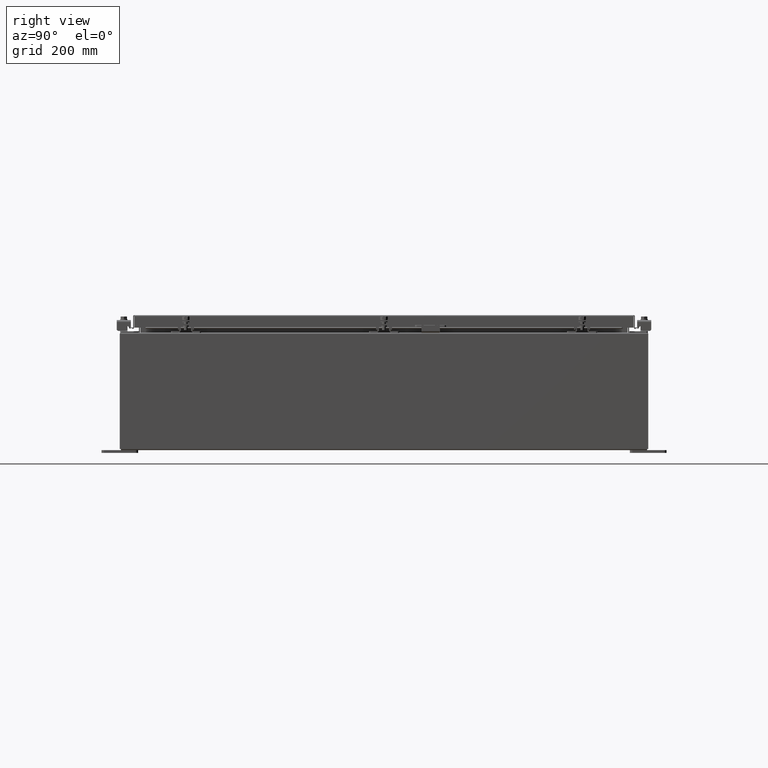
[diagram: clean part render]
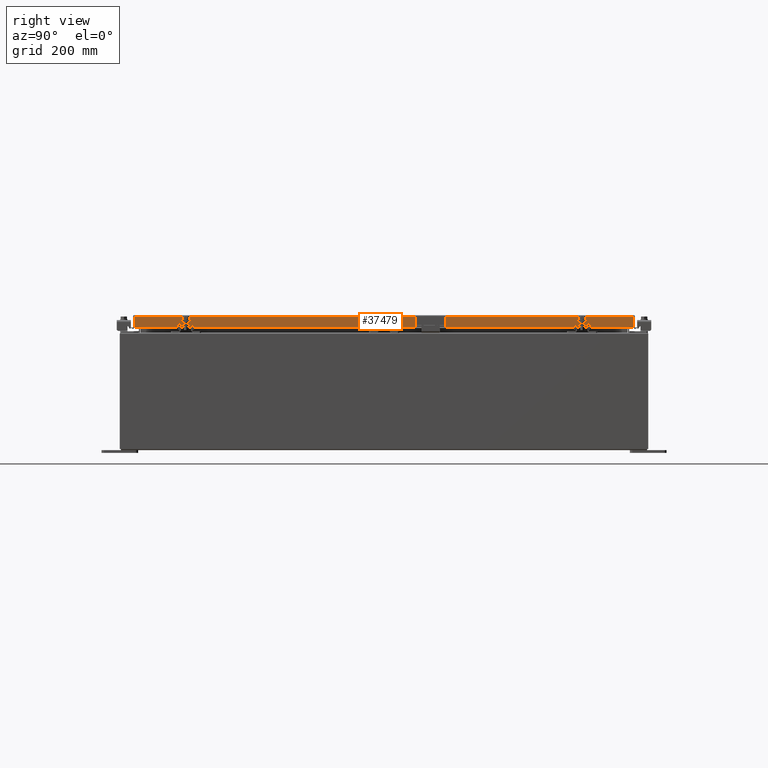
[diagram: same view with one face highlighted and labeled with its STEP entity id]
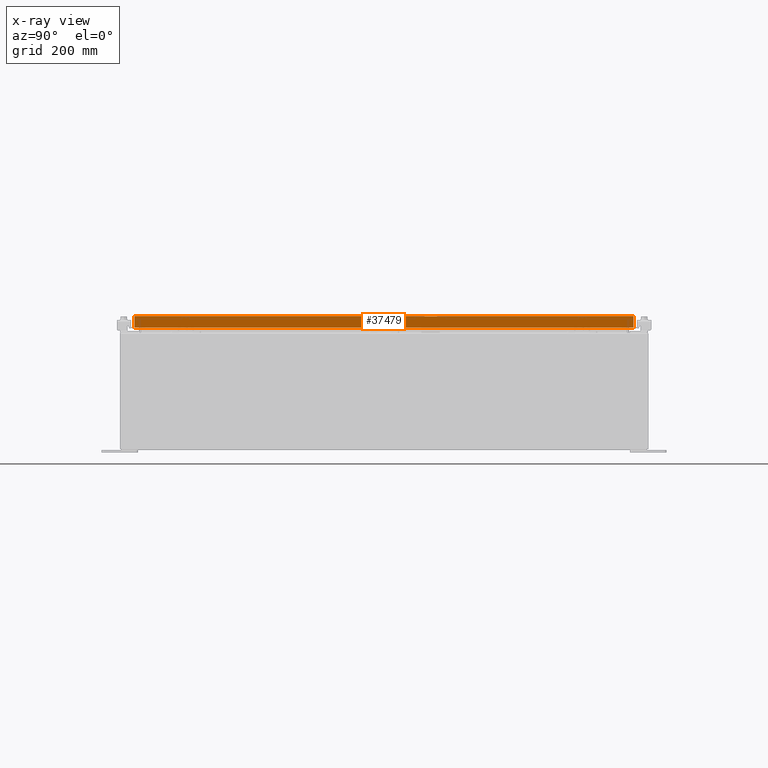
[diagram: x-ray of the same camera — body ghosted, the highlighted face saturated]
A machine part, right view. The second image highlights one B-rep face of the part: STEP entity #37479.
The next image is the same camera in x-ray: the body ghosted, the highlighted face saturated — about 0% of this face is hidden behind the body in this view.
In plain terms, the highlighted planar face has unit normal (1, 0, 0).
Its self-contained STEP definition (entity closure, byte-faithful):
#3063 = EDGE_LOOP ( 'NONE', ( #13705, #23874, #41511, #40181, #16237, #17726 ) ) ;
#3852 = FACE_OUTER_BOUND ( 'NONE', #3063, .T. ) ;
#5108 = VECTOR ( 'NONE', #15256, 39.37007874015748100 ) ;
#6522 = LINE ( 'NONE', #24897, #23187 ) ;
#9705 = VECTOR ( 'NONE', #40990, 39.37007874015748100 ) ;
#11087 = DIRECTION ( 'NONE',  ( 1.000000000000000000, 0.0000000000000000000, 2.818880942772360100E-015 ) ) ;
#13639 = VERTEX_POINT ( 'NONE', #22686 ) ;
#13705 = ORIENTED_EDGE ( 'NONE', *, *, #15890, .F. ) ;
#15256 = DIRECTION ( 'NONE',  ( 0.0000000000000000000, -1.000000000000000000, 0.0000000000000000000 ) ) ;
#15719 = EDGE_CURVE ( 'NONE', #38356, #33878, #39579, .T. ) ;
#15890 = EDGE_CURVE ( 'NONE', #13639, #33878, #25437, .T. ) ;
#15899 = CARTESIAN_POINT ( 'NONE',  ( 14.07799999999999600, -17.09400000000000100, -0.8499999999999996400 ) ) ;
#16237 = ORIENTED_EDGE ( 'NONE', *, *, #18883, .T. ) ;
#16939 = EDGE_CURVE ( 'NONE', #18189, #38504, #28990, .T. ) ;
#17364 = EDGE_CURVE ( 'NONE', #37833, #13639, #6522, .T. ) ;
#17637 = CARTESIAN_POINT ( 'NONE',  ( 14.07799999999999400, 0.0000000000000000000, 3.994501956836084300E-014 ) ) ;
#17726 = ORIENTED_EDGE ( 'NONE', *, *, #15719, .T. ) ;
#18189 = VERTEX_POINT ( 'NONE', #40620 ) ;
#18883 = EDGE_CURVE ( 'NONE', #18189, #38356, #35311, .T. ) ;
#19474 = DIRECTION ( 'NONE',  ( -2.818880942772360500E-015, -6.982962677686269100E-015, 1.000000000000000000 ) ) ;
#20946 = CARTESIAN_POINT ( 'NONE',  ( 14.07799999999999400, 17.00515786437627200, 1.586914022634635000E-013 ) ) ;
#21654 = DIRECTION ( 'NONE',  ( 0.0000000000000000000, -1.000000000000000000, 0.0000000000000000000 ) ) ;
#22481 = DIRECTION ( 'NONE',  ( 0.0000000000000000000, -1.000000000000000000, 0.0000000000000000000 ) ) ;
#22686 = CARTESIAN_POINT ( 'NONE',  ( 14.07799999999999600, -17.00515786437626500, -0.8499999999999996400 ) ) ;
#22803 = AXIS2_PLACEMENT_3D ( 'NONE', #17637, #11087, #34481 ) ;
#22876 = CARTESIAN_POINT ( 'NONE',  ( 14.07799999999998700, -16.25515786437626500, -0.8500000000000016400 ) ) ;
#23187 = VECTOR ( 'NONE', #21654, 39.37007874015748100 ) ;
#23874 = ORIENTED_EDGE ( 'NONE', *, *, #17364, .F. ) ;
#24383 = PLANE ( 'NONE',  #22803 ) ;
#24897 = CARTESIAN_POINT ( 'NONE',  ( 14.07799999999999600, -17.09400000000000100, -0.8499999999999996400 ) ) ;
#25437 = LINE ( 'NONE', #36187, #41135 ) ;
#28990 = LINE ( 'NONE', #15899, #37898 ) ;
#29799 = CARTESIAN_POINT ( 'NONE',  ( 14.07799999999999400, -17.00515786437626900, -0.08770000000000007000 ) ) ;
#32583 = DIRECTION ( 'NONE',  ( 0.0000000000000000000, -1.000000000000000000, 0.0000000000000000000 ) ) ;
#32811 = LINE ( 'NONE', #42539, #33870 ) ;
#33755 = EDGE_CURVE ( 'NONE', #38504, #37833, #32811, .T. ) ;
#33870 = VECTOR ( 'NONE', #22481, 39.37007874015748100 ) ;
#33878 = VERTEX_POINT ( 'NONE', #29799 ) ;
#34481 = DIRECTION ( 'NONE',  ( 2.818880942772360100E-015, 0.0000000000000000000, -1.000000000000000000 ) ) ;
#35311 = LINE ( 'NONE', #20946, #9705 ) ;
#36187 = CARTESIAN_POINT ( 'NONE',  ( 14.07799999999999400, -17.00515786437626900, -0.07469999999999978000 ) ) ;
#36888 = CARTESIAN_POINT ( 'NONE',  ( 14.07799999999998700, 16.25515786437627600, -0.8500000000000016400 ) ) ;
#37479 = ADVANCED_FACE ( 'NONE', ( #3852 ), #24383, .T. ) ;
#37833 = VERTEX_POINT ( 'NONE', #22876 ) ;
#37898 = VECTOR ( 'NONE', #32583, 39.37007874015748100 ) ;
#38356 = VERTEX_POINT ( 'NONE', #42443 ) ;
#38504 = VERTEX_POINT ( 'NONE', #36888 ) ;
#38691 = CARTESIAN_POINT ( 'NONE',  ( 14.07799999999999400, 0.0000000000000000000, -0.08770000000000007000 ) ) ;
#39579 = LINE ( 'NONE', #38691, #5108 ) ;
#40181 = ORIENTED_EDGE ( 'NONE', *, *, #16939, .F. ) ;
#40620 = CARTESIAN_POINT ( 'NONE',  ( 14.07799999999999600, 17.00515786437627600, -0.8499999999999996400 ) ) ;
#40990 = DIRECTION ( 'NONE',  ( -2.818880942772360500E-015, -6.982962677686269100E-015, 1.000000000000000000 ) ) ;
#41135 = VECTOR ( 'NONE', #19474, 39.37007874015748100 ) ;
#41511 = ORIENTED_EDGE ( 'NONE', *, *, #33755, .F. ) ;
#42443 = CARTESIAN_POINT ( 'NONE',  ( 14.07799999999999400, 17.00515786437626900, -0.08770000000000007000 ) ) ;
#42539 = CARTESIAN_POINT ( 'NONE',  ( 14.07799999999998700, 16.25515786437628000, -0.8500000000000016400 ) ) ;